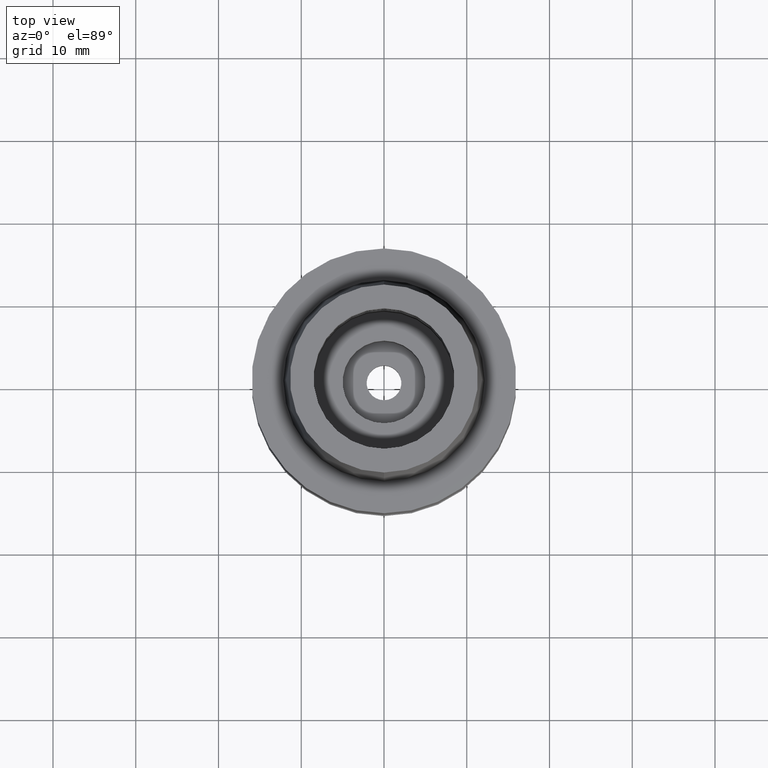
[diagram: clean part render]
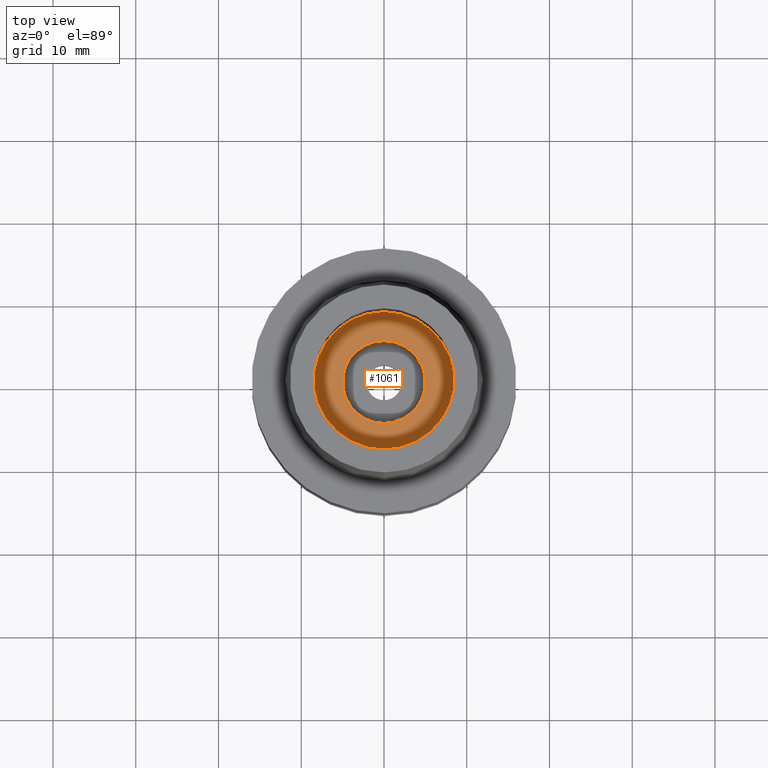
[diagram: same view with one face highlighted and labeled with its STEP entity id]
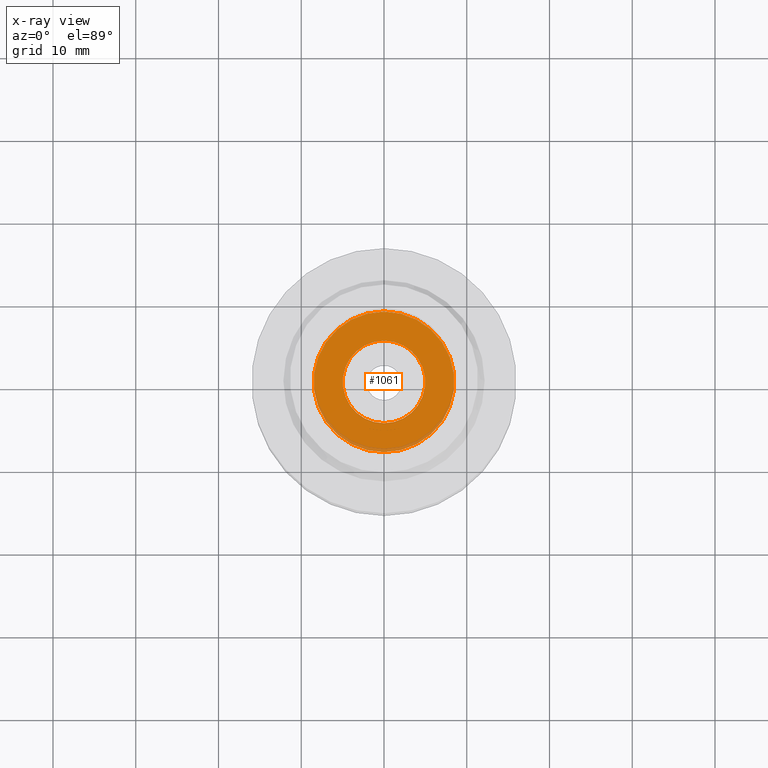
[diagram: x-ray of the same camera — body ghosted, the highlighted face saturated]
A machine part, top view. The second image highlights one B-rep face of the part: STEP entity #1061.
The next image is the same camera in x-ray: the body ghosted, the highlighted face saturated — about 5% of this face is hidden behind the body in this view.
In plain terms, the highlighted planar face has unit normal (0, 0, -1).
Its self-contained STEP definition (entity closure, byte-faithful):
#230=CARTESIAN_POINT('',(0.E0,1.467126865379E-14,-7.95E0));
#231=DIRECTION('',(0.E0,0.E0,-1.E0));
#232=DIRECTION('',(0.E0,-1.E0,0.E0));
#233=AXIS2_PLACEMENT_3D('',#230,#231,#232);
#238=CARTESIAN_POINT('',(0.E0,1.467126865379E-14,-7.95E0));
#239=DIRECTION('',(0.E0,0.E0,-1.E0));
#240=DIRECTION('',(0.E0,1.E0,0.E0));
#241=AXIS2_PLACEMENT_3D('',#238,#239,#240);
#246=CARTESIAN_POINT('',(0.E0,1.467126865379E-14,-7.95E0));
#247=DIRECTION('',(0.E0,0.E0,1.E0));
#248=DIRECTION('',(0.E0,-1.E0,0.E0));
#249=AXIS2_PLACEMENT_3D('',#246,#247,#248);
#254=CARTESIAN_POINT('',(0.E0,1.467126865379E-14,-7.95E0));
#255=DIRECTION('',(0.E0,0.E0,1.E0));
#256=DIRECTION('',(0.E0,1.E0,0.E0));
#257=AXIS2_PLACEMENT_3D('',#254,#255,#256);
#752=CARTESIAN_POINT('',(0.E0,8.5E0,-7.95E0));
#753=VERTEX_POINT('',#752);
#754=CARTESIAN_POINT('',(0.E0,-8.5E0,-7.95E0));
#755=VERTEX_POINT('',#754);
#756=CARTESIAN_POINT('',(0.E0,-5.E0,-7.95E0));
#757=CARTESIAN_POINT('',(0.E0,5.E0,-7.95E0));
#758=VERTEX_POINT('',#756);
#759=VERTEX_POINT('',#757);
#1046=CARTESIAN_POINT('',(0.E0,1.127287378615E-14,-7.95E0));
#1047=DIRECTION('',(0.E0,0.E0,-1.E0));
#1048=DIRECTION('',(0.E0,-1.E0,0.E0));
#1049=AXIS2_PLACEMENT_3D('',#1046,#1047,#1048);
#1050=PLANE('',#1049);
#1051=ORIENTED_EDGE('',*,*,#1025,.T.);
#1052=ORIENTED_EDGE('',*,*,#1041,.T.);
#1053=EDGE_LOOP('',(#1051,#1052));
#1054=FACE_OUTER_BOUND('',#1053,.F.);
#1056=ORIENTED_EDGE('',*,*,#1055,.T.);
#1058=ORIENTED_EDGE('',*,*,#1057,.T.);
#1059=EDGE_LOOP('',(#1056,#1058));
#1060=FACE_BOUND('',#1059,.F.);
#234=CIRCLE('',#233,8.5E0);
#242=CIRCLE('',#241,8.5E0);
#250=CIRCLE('',#249,5.E0);
#258=CIRCLE('',#257,5.E0);
#1025=EDGE_CURVE('',#755,#753,#234,.T.);
#1041=EDGE_CURVE('',#753,#755,#242,.T.);
#1055=EDGE_CURVE('',#758,#759,#250,.T.);
#1057=EDGE_CURVE('',#759,#758,#258,.T.);
#1061=ADVANCED_FACE('',(#1054,#1060),#1050,.F.);